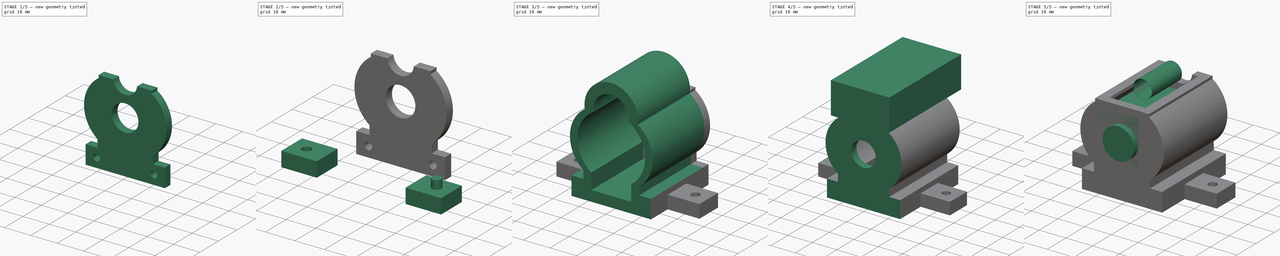
[diagram: build sequence overview — one tinted view per stage of 5, left to right]
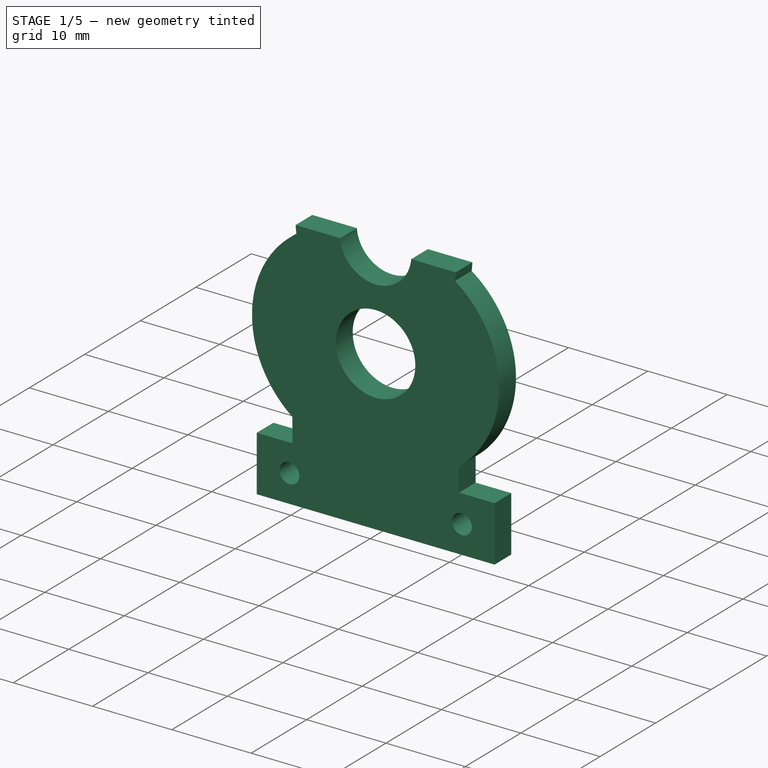
[diagram: stage 1 of 5 — iso view after this stage's code; geometry added in this stage tinted green]
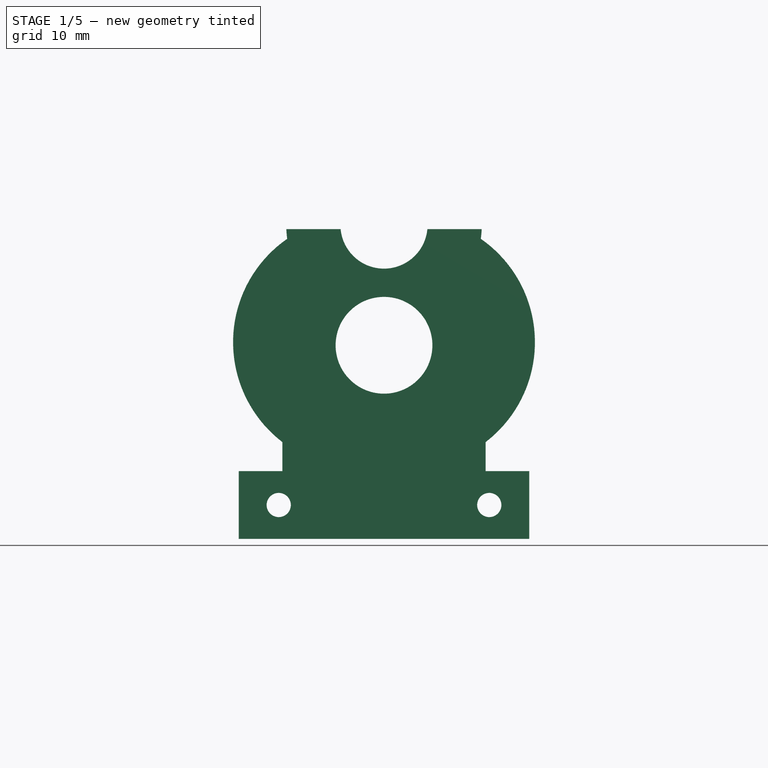
[diagram: stage 1 of 5 — front view after this stage's code; geometry added in this stage tinted green]
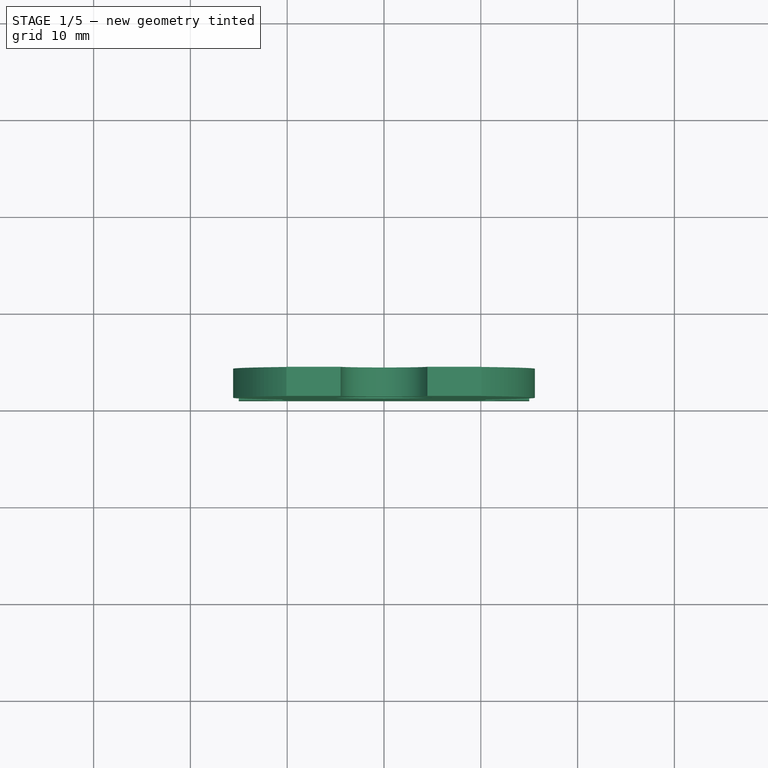
[diagram: stage 1 of 5 — top view after this stage's code; geometry added in this stage tinted green]
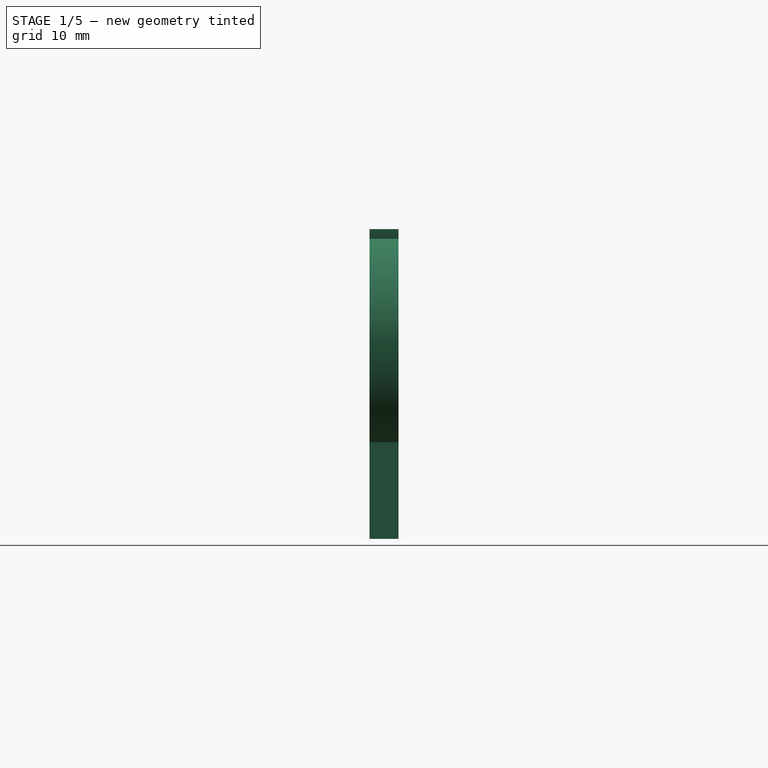
[diagram: stage 1 of 5 — right view after this stage's code; geometry added in this stage tinted green]
FCSTD DOCUMENT  (FreeCAD 1.0R39109 (Git))
Label: LightningArrestorHolder
License: All rights reserved
LicenseURL: https://en.wikipedia.org/wiki/All_rights_reserved
objects: Part::Cylinder×6, Part::Cut×6, Part::Box×6, Sketcher::SketchObject×4, Part::Extrusion×4, Part::Feature×3, Part::MultiFuse×3, App::Part×2, Part::FeaturePython×1
note: 37 computed .brp shape members not serialized (recipe doc carries the construction recipe); baked Part::Feature solids carry a one-line shape summary decoded from their .brp

FEATURE [Sketcher::SketchObject] Sketch003
  ArcFitTolerance = 0
  FullyConstrained = true
  MakeInternals = false
  Placement = pos=(0,0,0) rot=(1,0,0;1.5708rad)
  sketch-geometry (14):
    g0: ArcOfCircle CenterX=0 CenterY=12.4177 CenterZ=0 NormalX=0 NormalY=0 NormalZ=1 AngleXU=0 Radius=10.1 StartAngle=6.14235 EndAngle=9.56561
    g1: ArcOfCircle CenterX=-2.59139 CenterY=0.317652 CenterZ=0 NormalX=0 NormalY=0 NormalZ=1 AngleXU=0 Radius=13 StartAngle=2.17717 EndAngle=4.0584
    g2: ArcOfCircle CenterX=2.59139 CenterY=0.317652 CenterZ=0 NormalX=0 NormalY=0 NormalZ=1 AngleXU=0 Radius=13 StartAngle=5.36637 EndAngle=7.24761
    g3: LineSegment StartX=10.5 StartY=-10 StartZ=0 EndX=10.5 EndY=-13 EndZ=0
    g4: LineSegment StartX=10.5 StartY=-13 StartZ=0 EndX=15 EndY=-13 EndZ=0
    g5: LineSegment StartX=15 StartY=-13 StartZ=0 EndX=15 EndY=-20 EndZ=0
    g6: LineSegment StartX=-10.5 StartY=-10 StartZ=0 EndX=-10.5 EndY=-13 EndZ=0
    g7: LineSegment StartX=-10.5 StartY=-13 StartZ=0 EndX=-15 EndY=-13 EndZ=0
    g8: LineSegment StartX=-15 StartY=-13 StartZ=0 EndX=-15 EndY=-20 EndZ=0
    g9: LineSegment StartX=-15 StartY=-20 StartZ=0 EndX=15 EndY=-20 EndZ=0
    g10: Circle CenterX=0 CenterY=0 CenterZ=0 NormalX=0 NormalY=0 NormalZ=1 AngleXU=0 Radius=5
    g11: Circle CenterX=0 CenterY=12.4177 CenterZ=0 NormalX=0 NormalY=0 NormalZ=1 AngleXU=0 Radius=4.5
    g12: Circle CenterX=-10.8747 CenterY=-16.5 CenterZ=0 NormalX=0 NormalY=0 NormalZ=1 AngleXU=0 Radius=1.25
    g13: Circle CenterX=10.8747 CenterY=-16.5 CenterZ=0 NormalX=0 NormalY=0 NormalZ=1 AngleXU=0 Radius=1.25
  constraints (41):
    c: Coincident(g1,g0)
    c: Coincident(g2,g0)
    c: Coincident(g3,g2)
    c: Vertical(g3)
    c: Coincident(g4,g3)
    c: Horizontal(g4)
    c: Coincident(g5,g4)
    c: Vertical(g5)
    c: Coincident(g6,g1)
    c: Vertical(g6)
    c: Coincident(g7,g6)
    c: Horizontal(g7)
    c: Coincident(g8,g7)
    c: Vertical(g8)
    c: Coincident(g9,g8)
    c: Coincident(g9,g5)
    c: Symmetric(g8,g5,g-2)
    c: Distance(g8,g-1) = 20
    c: Distance(g8) = 7
    c: Distance(g5) = 7
    c: Distance(g9) = 30
    c: Distance(g0,g-1) = 11
    c: Distance(g0,g-2) = 10
    c: Distance(g0,g-1) = 11
    c: Distance(g0,g-2) = 10
    c: Distance(g6) = 3
    c: Distance(g3) = 3
    c: Diameter(g2) = 26
    c: Diameter(g1) = 26
    c: Diameter(g0) = 20.2
    c: Distance(g4) = 4.5
    c: Distance(g7) = 4.5
    c: Coincident(g-1,g10)
    c: Diameter(g10) = 10
    c: Coincident(g11,g0)
    c: Diameter(g11) = 9
    c: Distance(g12,g-1) = 16.5
    c: Diameter(g13) = 2.5
    c: Diameter(g12) = 2.5
    c: Symmetric(g12,g13,g-2)
    c: Distance(g13,g3) = 3.52
FEATURE [Part::Extrusion] Extrude003  label="Back_cover"
  Base = -> Sketch003
  Dir = (0,-1,2e-16)
  DirMode = 2
  FaceMakerClass = Part::FaceMakerBullseye
  FaceMakerMode = 3
  LengthFwd = 3
  LengthRev = 0
  Placement = pos=(0,31,0) rot=(0,0,1;0rad)
  Reversed = true
  Solid = true
  Symmetric = false
FEATURE [Part::Box] Box  label="Cube"
  AttacherType = Attacher::AttachEngine3D
  Height = 2
  Length = 3
  Placement = pos=(-1.5,29,19.5) rot=(0,0,1;0rad)
  Width = 2
FEATURE [Part::MultiFuse] Fusion001  label="bck"
  Shapes = -> [Box,Extrude003]
FEATURE [Part::Box] Box005  label="Cube005"
  AttacherType = Attacher::AttachEngine3D
  Height = 13
  Length = 24
  Placement = pos=(-12,-2,12) rot=(0,0,1;0rad)
  Width = 42
FEATURE [Part::Cut] Cut005  label="cover"
  Base = -> Fusion001
  Refine = true
  Tool = -> Box005
FEATURE [App::Part] Part001  label="Case"
  Group = -> [Cylinder002,Cylinder003,Cylinder004,Sketch001,Sketch002,Extrude001,Extrude002,Cylinder005,Cut003,Cut002,Fusion,Cut,Cut001,Fusion002,Box001,Box003,Box004,Box002,Cut004,Box,Sketch003,Extrude003,Fusion001,Box005,Cut005]
  Origin = -> Origin001
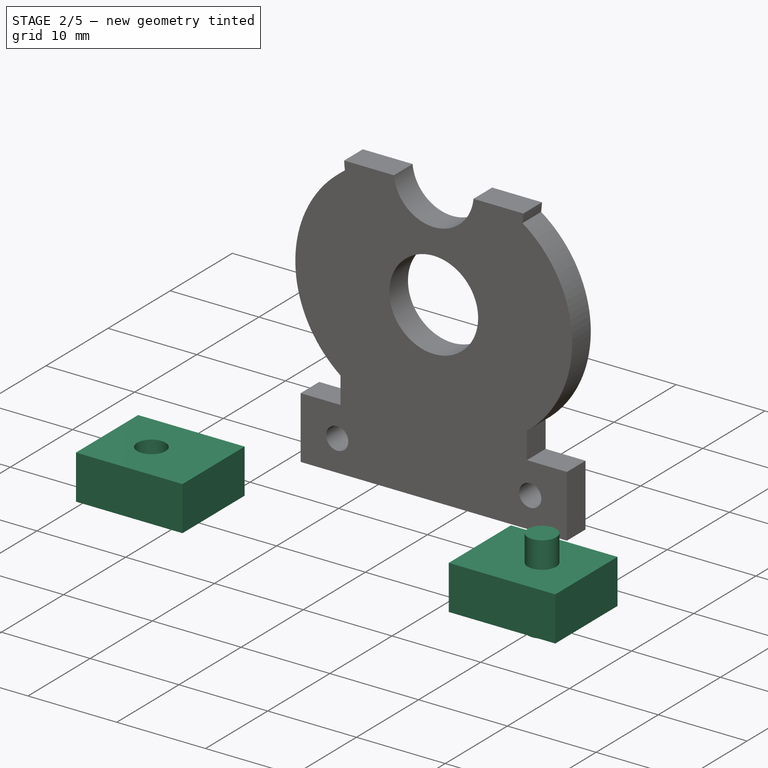
[diagram: stage 2 of 5 — iso view after this stage's code; geometry added in this stage tinted green]
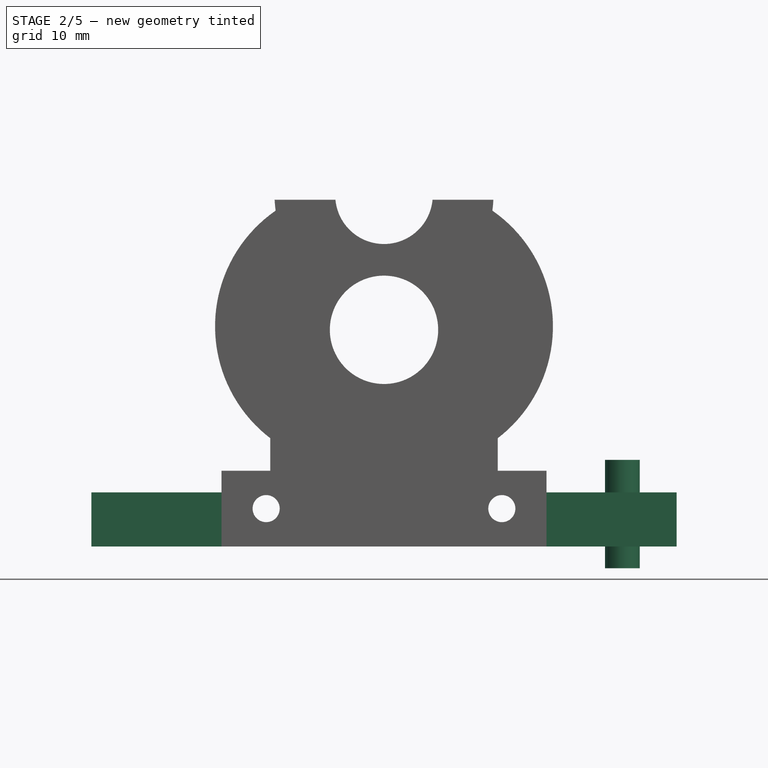
[diagram: stage 2 of 5 — front view after this stage's code; geometry added in this stage tinted green]
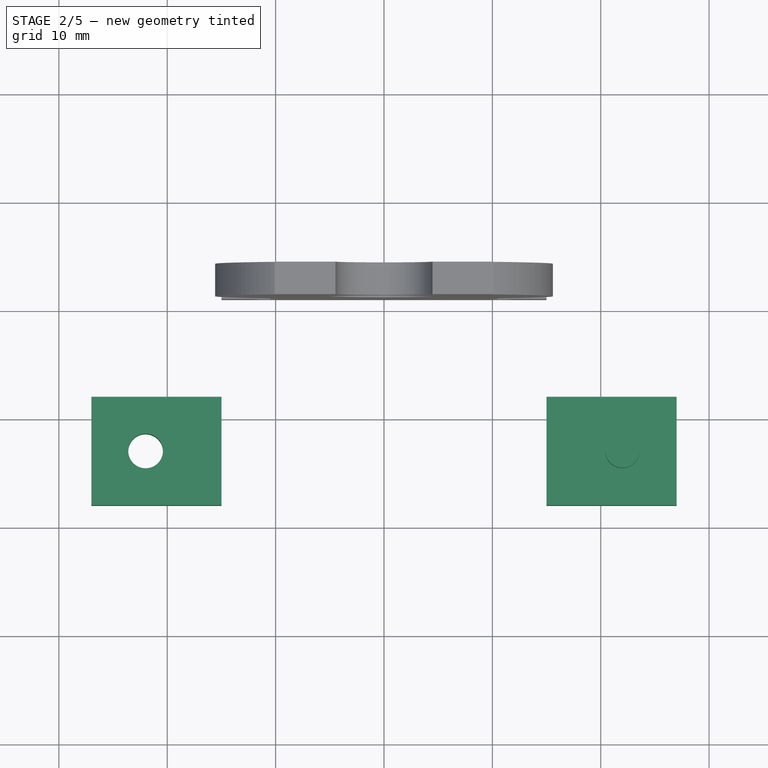
[diagram: stage 2 of 5 — top view after this stage's code; geometry added in this stage tinted green]
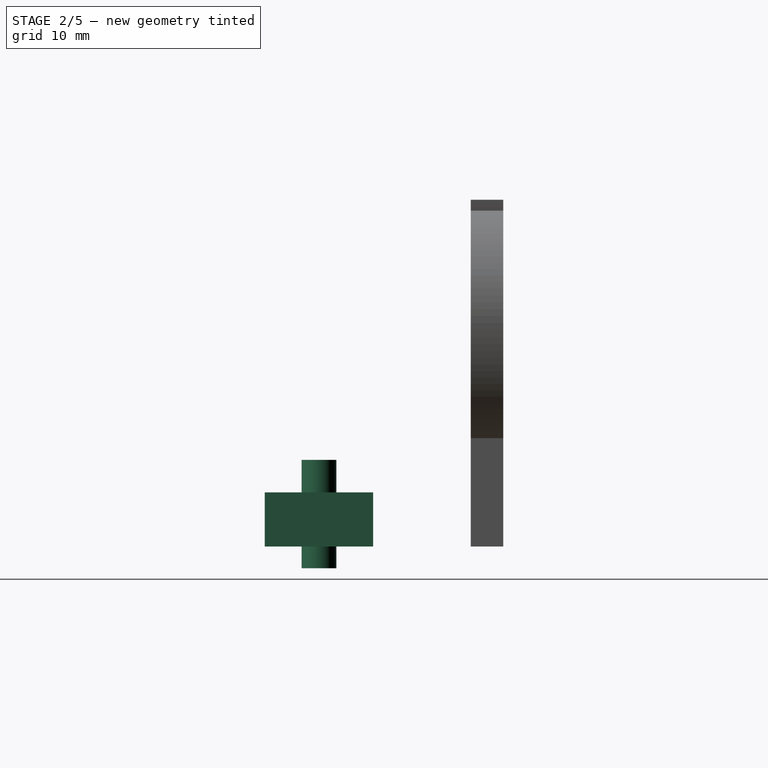
[diagram: stage 2 of 5 — right view after this stage's code; geometry added in this stage tinted green]
FEATURE [Part::Box] Box002  label="Cube002"
  AttacherType = Attacher::AttachEngine3D
  Height = 5
  Length = 12
  Placement = pos=(15,12,-20) rot=(0,0,1;0rad)
  Width = 10
FEATURE [Part::Cylinder] Cylinder004
  Angle = 360
  AttacherType = Attacher::AttachEngine3D
  FirstAngle = 0
  Height = 10
  Placement = pos=(22,17,-22) rot=(0,0,1;0rad)
  Radius = 1.6
  SecondAngle = 0
FEATURE [Part::Box] Box003  label="Cube003"
  AttacherType = Attacher::AttachEngine3D
  Height = 5
  Length = 12
  Placement = pos=(15,12,-20) rot=(0,0,1;0rad)
  Width = 10
FEATURE [Part::Cylinder] Cylinder005
  Angle = 360
  AttacherType = Attacher::AttachEngine3D
  FirstAngle = 0
  Height = 10
  Placement = pos=(22,17,-22) rot=(0,0,1;0rad)
  Radius = 1.6
  SecondAngle = 0
FEATURE [Part::Cut] Cut003
  Base = -> Box003
  Placement = pos=(0,34,0) rot=(0,0,1;3.14159rad)
  Refine = true
  Tool = -> Cylinder005
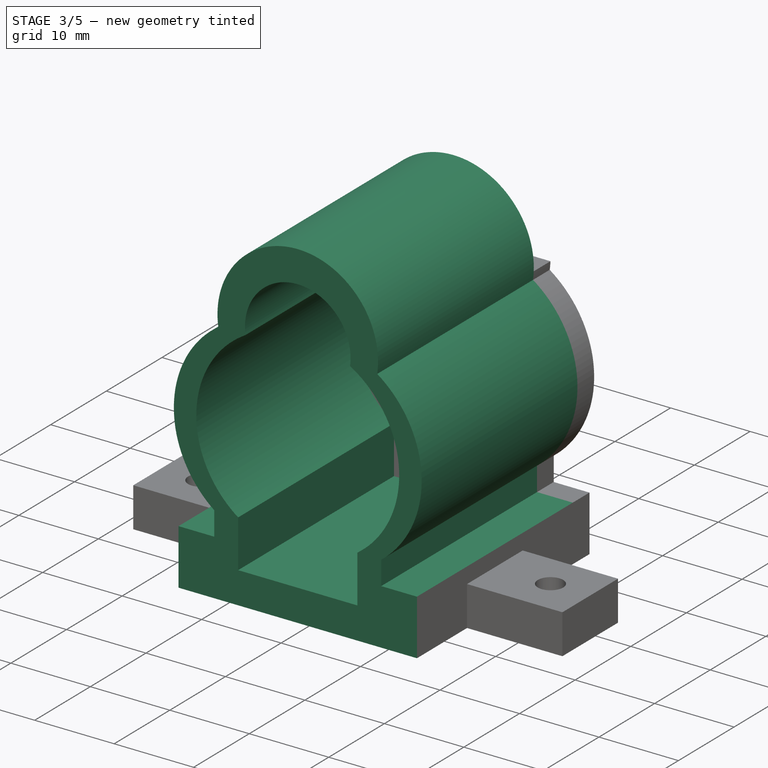
[diagram: stage 3 of 5 — iso view after this stage's code; geometry added in this stage tinted green]
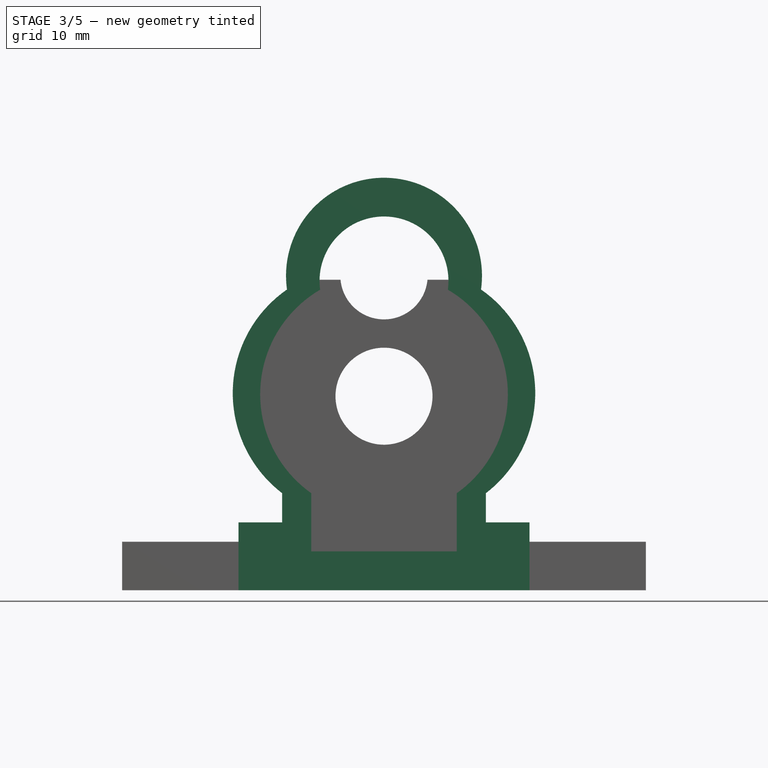
[diagram: stage 3 of 5 — front view after this stage's code; geometry added in this stage tinted green]
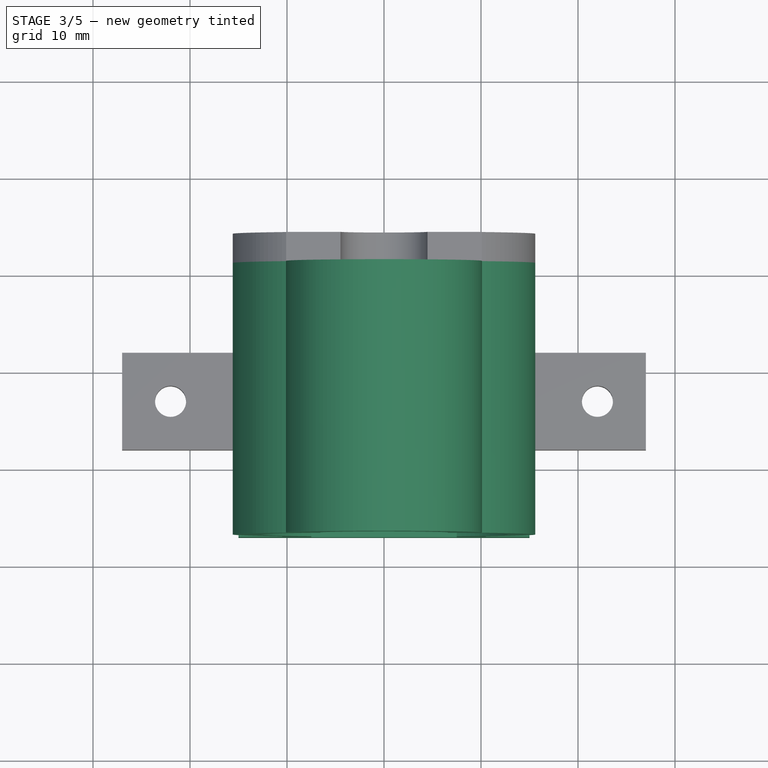
[diagram: stage 3 of 5 — top view after this stage's code; geometry added in this stage tinted green]
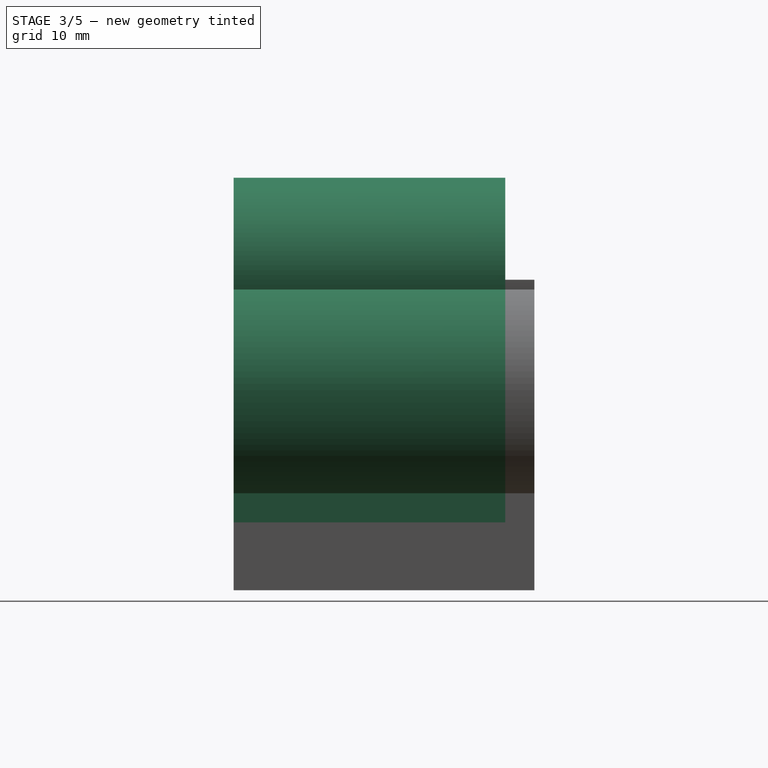
[diagram: stage 3 of 5 — right view after this stage's code; geometry added in this stage tinted green]
FEATURE [App::Part] Part  label="Lightning_Arrestor"
  Group = -> [Sketch,Extrude,Cylinder,Part__Feature,Part__Feature001,Cylinder001,Part__Feature002,Tube]
  Origin = -> Origin
  Placement = pos=(0,5.5,0) rot=(0,0,1;0rad)
FEATURE [Sketcher::SketchObject] Sketch001
  ArcFitTolerance = 0
  FullyConstrained = true
  MakeInternals = false
  Placement = pos=(0,0,0) rot=(1,0,0;1.5708rad)
  sketch-geometry (16):
    g0: LineSegment StartX=-7.5 StartY=-10 StartZ=0 EndX=-7.5 EndY=-16 EndZ=0
    g1: LineSegment StartX=-7.5 StartY=-16 StartZ=0 EndX=7.5 EndY=-16 EndZ=0
    g2: LineSegment StartX=7.5 StartY=-16 StartZ=0 EndX=7.5 EndY=-10 EndZ=0
    g3: ArcOfCircle CenterX=-2e-16 CenterY=11.88 CenterZ=0 NormalX=0 NormalY=0 NormalZ=1 AngleXU=0 Radius=6.64493 StartAngle=6.14733 EndAngle=9.56064
    g4: ArcOfCircle CenterX=0.265981 CenterY=0.194065 CenterZ=0 NormalX=0 NormalY=0 NormalZ=1 AngleXU=0 Radius=12.5 StartAngle=5.32955 EndAngle=7.32412
    g5: ArcOfCircle CenterX=-0.265981 CenterY=0.194065 CenterZ=0 NormalX=0 NormalY=0 NormalZ=1 AngleXU=0 Radius=12.5 StartAngle=2.10066 EndAngle=4.09523
    g6: ArcOfCircle CenterX=-1e-16 CenterY=12.4177 CenterZ=0 NormalX=0 NormalY=0 NormalZ=1 AngleXU=0 Radius=10.1 StartAngle=6.14235 EndAngle=9.56561
    g7: ArcOfCircle CenterX=-2.59139 CenterY=0.317652 CenterZ=0 NormalX=0 NormalY=0 NormalZ=1 AngleXU=0 Radius=13 StartAngle=2.17717 EndAngle=4.0584
    g8: ArcOfCircle CenterX=2.59139 CenterY=0.317652 CenterZ=0 NormalX=0 NormalY=0 NormalZ=1 AngleXU=0 Radius=13 StartAngle=5.36637 EndAngle=7.24761
    g9: LineSegment StartX=10.5 StartY=-10 StartZ=0 EndX=10.5 EndY=-13 EndZ=0
    g10: LineSegment StartX=10.5 StartY=-13 StartZ=0 EndX=15 EndY=-13 EndZ=0
    g11: LineSegment StartX=15 StartY=-13 StartZ=0 EndX=15 EndY=-20 EndZ=0
    g12: LineSegment StartX=-10.5 StartY=-10 StartZ=0 EndX=-10.5 EndY=-13 EndZ=0
    g13: LineSegment StartX=-10.5 StartY=-13 StartZ=0 EndX=-15 EndY=-13 EndZ=0
    g14: LineSegment StartX=-15 StartY=-13 StartZ=0 EndX=-15 EndY=-20 EndZ=0
    g15: LineSegment StartX=-15 StartY=-20 StartZ=0 EndX=15 EndY=-20 EndZ=0
  constraints (51):
    c: Vertical(g0)
    c: Coincident(g1,g0)
    c: Coincident(g2,g1)
    c: Vertical(g2)
    c: Coincident(g4,g3)
    c: Coincident(g4,g2)
    c: Coincident(g5,g3)
    c: Coincident(g5,g0)
    c: Distance(g0,g-1) = 16
    c: Distance(g0,g-2) = 7.5
    c: Symmetric(g0,g1,g-2)
    c: Distance(g0) = 6
    c: Distance(g2) = 6
    c: Diameter(g4) = 25
    c: Diameter(g5) = 25
    c: Symmetric(g3,g3,g-2)
    c: Distance(g3,g0) = 21
    c: Distance(g3,g-1) = 10.98
    c: Distance(g3,g-1) = 11.88
    c: Coincident(g7,g6)
    c: Coincident(g8,g6)
    c: Coincident(g9,g8)
    c: Vertical(g9)
    c: Coincident(g10,g9)
    c: Horizontal(g10)
    c: Coincident(g11,g10)
    c: Vertical(g11)
    c: Coincident(g12,g7)
    c: Vertical(g12)
    c: Coincident(g13,g12)
    c: Horizontal(g13)
    c: Coincident(g14,g13)
    c: Vertical(g14)
    c: Coincident(g15,g14)
    c: Coincident(g15,g11)
    c: Symmetric(g14,g11,g-2)
    c: Distance(g14,g-1) = 20
    c: Distance(g14) = 7
    c: Distance(g11) = 7
    c: Distance(g15) = 30
    c: Distance(g12,g0) = 3
    c: Distance(g9,g2) = 3
    c: Distance(g6,g-1) = 11
    c: Distance(g6,g-2) = 10
    c: Distance(g6,g-1) = 11
    c: Distance(g6,g-2) = 10
    c: Distance(g12) = 3
    c: Distance(g9) = 3
    c: Diameter(g8) = 26
    c: Diameter(g7) = 26
    c: Diameter(g6) = 20.2
FEATURE [Part::Extrusion] Extrude001  label="outer_case"
  Base = -> Sketch001
  Dir = (0,-1,2e-16)
  DirMode = 2
  FaceMakerClass = Part::FaceMakerBullseye
  FaceMakerMode = 3
  LengthFwd = 28
  LengthRev = 0
  Placement = pos=(0,3,0) rot=(0,0,1;0rad)
  Reversed = true
  Solid = true
  Symmetric = false
FEATURE [Part::Cylinder] Cylinder002
  Angle = 360
  AttacherType = Attacher::AttachEngine3D
  FirstAngle = 0
  Height = 10
  Placement = pos=(10.87,21,-16.5) rot=(1,0,0;4.71239rad)
  Radius = 1.25
  SecondAngle = 0
FEATURE [Part::Cylinder] Cylinder003
  Angle = 360
  AttacherType = Attacher::AttachEngine3D
  FirstAngle = 0
  Height = 10
  Placement = pos=(-10.87,21,-16.5) rot=(-1,0,0;1.5708rad)
  Radius = 1.25
  SecondAngle = 0
FEATURE [Part::MultiFuse] Fusion  label="m2_cyl"
  Shapes = -> [Cylinder002,Cylinder003]
FEATURE [Part::Box] Box001  label="Cube001"
  AttacherType = Attacher::AttachEngine3D
  Height = 2
  Length = 3
  Placement = pos=(-1.5,29,19.5) rot=(0,0,1;0rad)
  Width = 2
FEATURE [Part::Cut] Cut002
  Base = -> Box002
  Refine = true
  Tool = -> Cylinder004
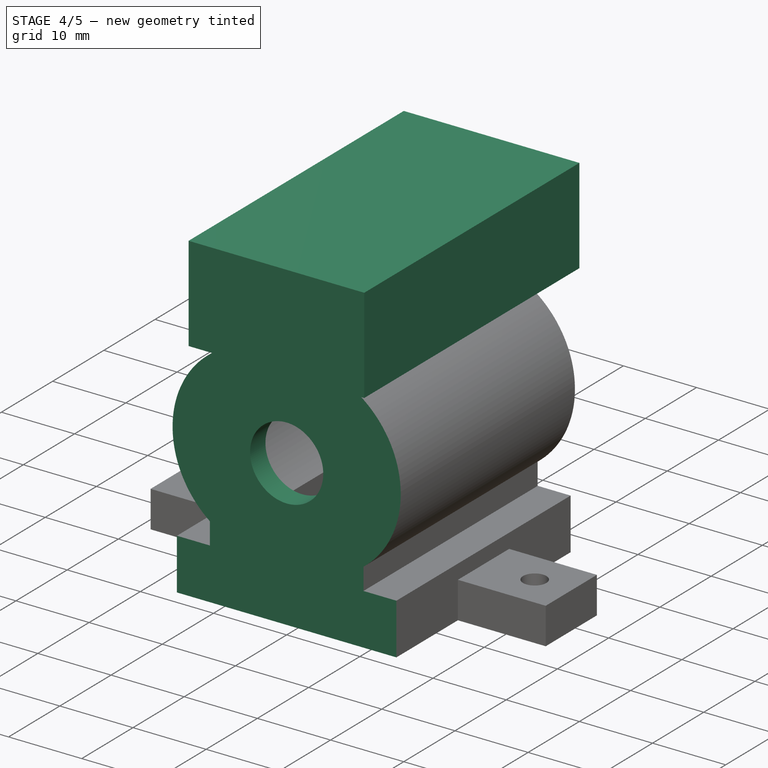
[diagram: stage 4 of 5 — iso view after this stage's code; geometry added in this stage tinted green]
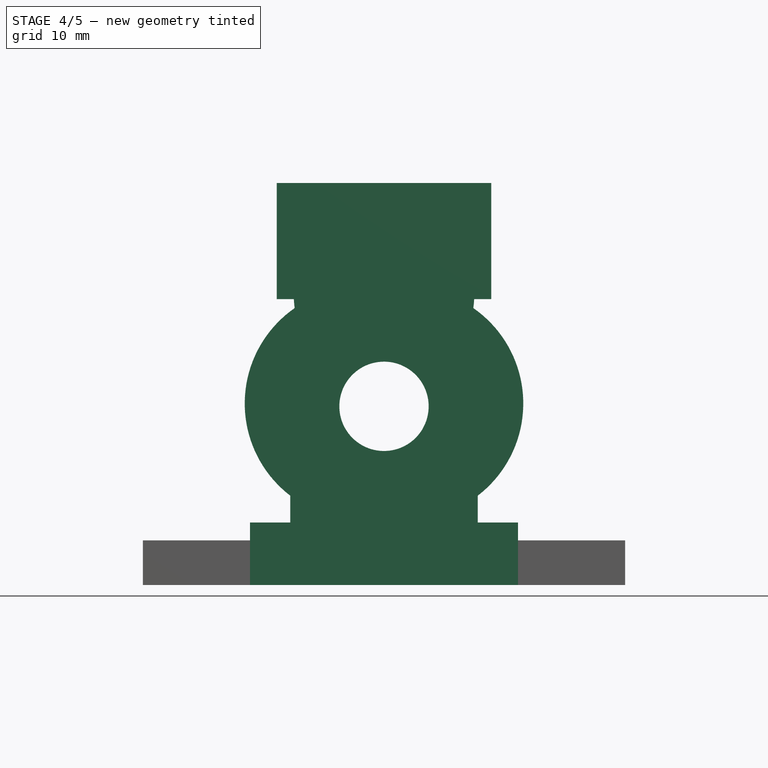
[diagram: stage 4 of 5 — front view after this stage's code; geometry added in this stage tinted green]
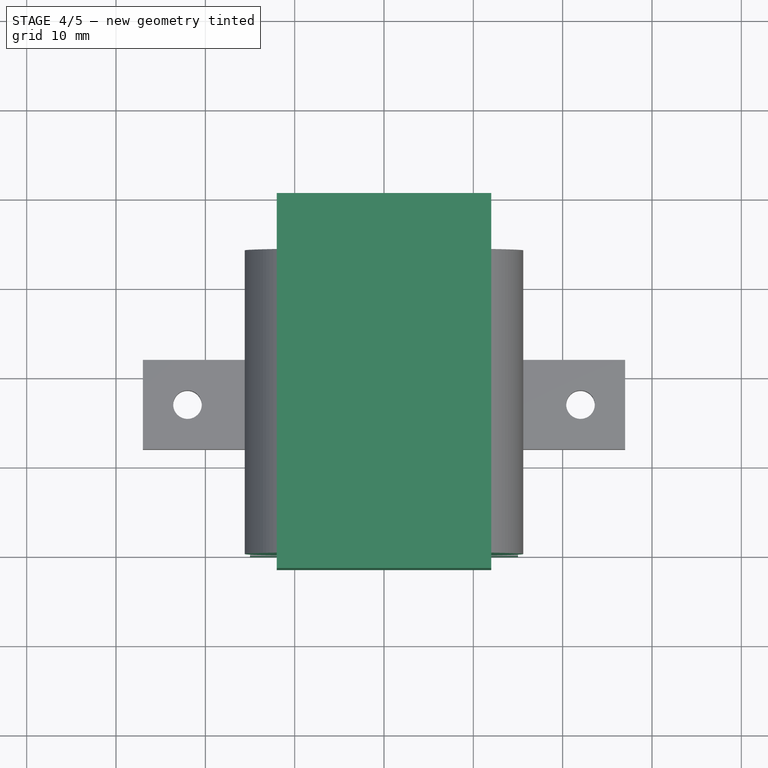
[diagram: stage 4 of 5 — top view after this stage's code; geometry added in this stage tinted green]
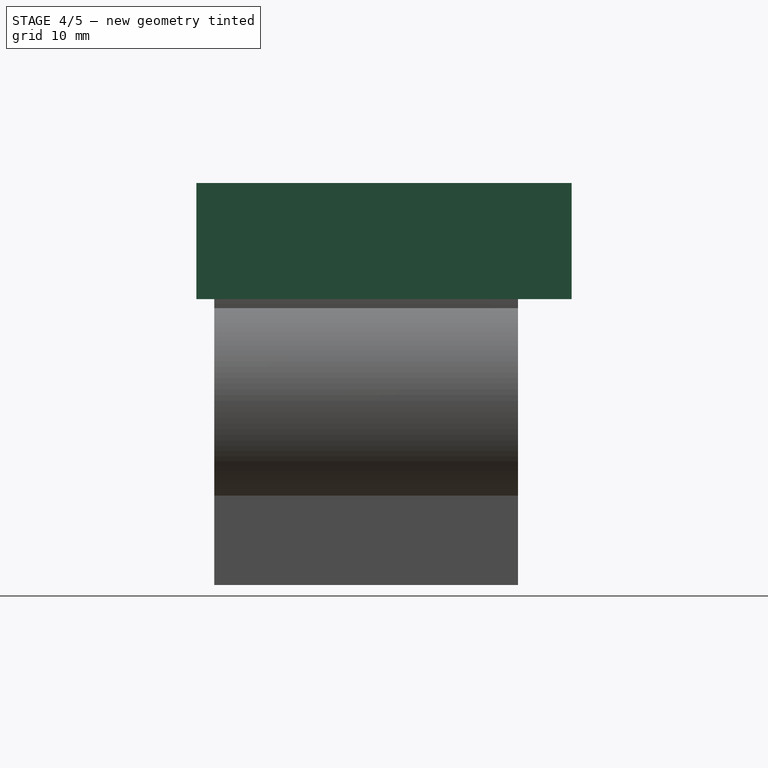
[diagram: stage 4 of 5 — right view after this stage's code; geometry added in this stage tinted green]
FEATURE [Sketcher::SketchObject] Sketch002
  ArcFitTolerance = 0
  FullyConstrained = true
  MakeInternals = false
  Placement = pos=(0,0,0) rot=(1,0,0;1.5708rad)
  sketch-geometry (11):
    g0: ArcOfCircle CenterX=-1e-16 CenterY=12.4177 CenterZ=0 NormalX=0 NormalY=0 NormalZ=1 AngleXU=0 Radius=10.1 StartAngle=6.14235 EndAngle=9.56561
    g1: ArcOfCircle CenterX=-2.59139 CenterY=0.317652 CenterZ=0 NormalX=0 NormalY=0 NormalZ=1 AngleXU=0 Radius=13 StartAngle=2.17717 EndAngle=4.0584
    g2: ArcOfCircle CenterX=2.59139 CenterY=0.317652 CenterZ=0 NormalX=0 NormalY=0 NormalZ=1 AngleXU=0 Radius=13 StartAngle=5.36637 EndAngle=7.24761
    g3: LineSegment StartX=10.5 StartY=-10 StartZ=0 EndX=10.5 EndY=-13 EndZ=0
    g4: LineSegment StartX=10.5 StartY=-13 StartZ=0 EndX=15 EndY=-13 EndZ=0
    g5: LineSegment StartX=15 StartY=-13 StartZ=0 EndX=15 EndY=-20 EndZ=0
    g6: LineSegment StartX=-10.5 StartY=-10 StartZ=0 EndX=-10.5 EndY=-13 EndZ=0
    g7: LineSegment StartX=-10.5 StartY=-13 StartZ=0 EndX=-15 EndY=-13 EndZ=0
    g8: LineSegment StartX=-15 StartY=-13 StartZ=0 EndX=-15 EndY=-20 EndZ=0
    g9: LineSegment StartX=-15 StartY=-20 StartZ=0 EndX=15 EndY=-20 EndZ=0
    g10: Circle CenterX=0 CenterY=0 CenterZ=0 NormalX=0 NormalY=0 NormalZ=1 AngleXU=0 Radius=5
  constraints (34):
    c: Coincident(g1,g0)
    c: Coincident(g2,g0)
    c: Coincident(g3,g2)
    c: Vertical(g3)
    c: Coincident(g4,g3)
    c: Horizontal(g4)
    c: Coincident(g5,g4)
    c: Vertical(g5)
    c: Coincident(g6,g1)
    c: Vertical(g6)
    c: Coincident(g7,g6)
    c: Horizontal(g7)
    c: Coincident(g8,g7)
    c: Vertical(g8)
    c: Coincident(g9,g8)
    c: Coincident(g9,g5)
    c: Symmetric(g8,g5,g-2)
    c: Distance(g8,g-1) = 20
    c: Distance(g8) = 7
    c: Distance(g5) = 7
    c: Distance(g9) = 30
    c: Distance(g0,g-1) = 11
    c: Distance(g0,g-2) = 10
    c: Distance(g0,g-1) = 11
    c: Distance(g0,g-2) = 10
    c: Distance(g6) = 3
    c: Distance(g3) = 3
    c: Diameter(g2) = 26
    c: Diameter(g1) = 26
    c: Diameter(g0) = 20.2
    c: Distance(g4) = 4.5
    c: Distance(g7) = 4.5
    c: Coincident(g-1,g10)
    c: Diameter(g10) = 10
FEATURE [Part::Extrusion] Extrude002  label="Front_cover"
  Base = -> Sketch002
  Dir = (0,-1,2e-16)
  DirMode = 2
  FaceMakerClass = Part::FaceMakerBullseye
  FaceMakerMode = 3
  LengthFwd = 3
  LengthRev = 0
  Reversed = true
  Solid = true
  Symmetric = false
FEATURE [Part::Cut] Cut  label="Outer_Case"
  Base = -> Extrude001
  Tool = -> Fusion
FEATURE [Part::Cut] Cut001  label="Outer"
  Base = -> Cut
  Tool = -> Box001
FEATURE [Part::Box] Box004  label="Cube004"
  AttacherType = Attacher::AttachEngine3D
  Height = 13
  Length = 24
  Placement = pos=(-12,-2,12) rot=(0,0,1;0rad)
  Width = 42
FEATURE [Part::MultiFuse] Fusion002
  Refine = true
  Shapes = -> [Cut001,Extrude002,Cut003,Cut002]
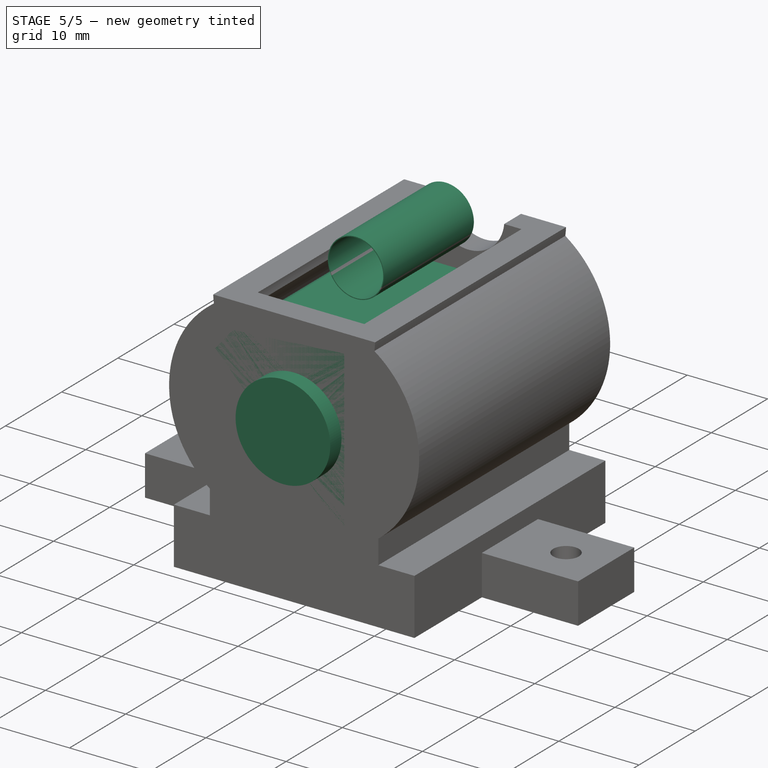
[diagram: stage 5 of 5 — iso view after this stage's code; geometry added in this stage tinted green]
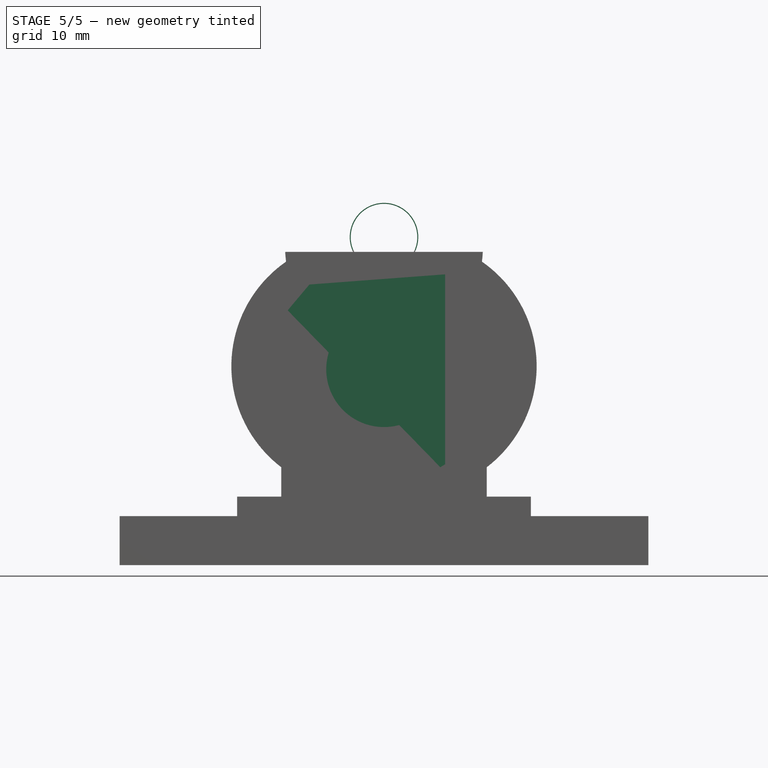
[diagram: stage 5 of 5 — front view after this stage's code; geometry added in this stage tinted green]
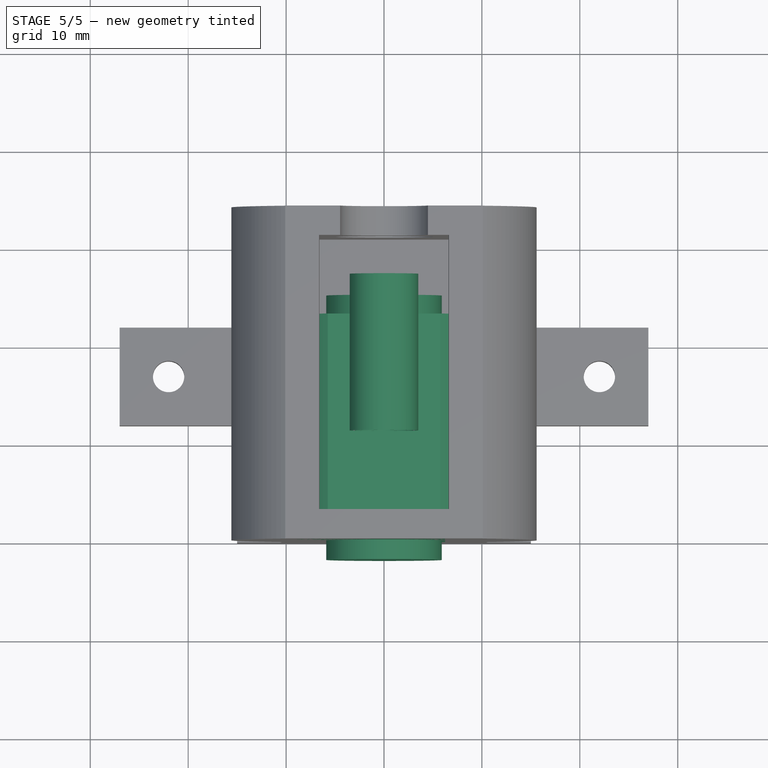
[diagram: stage 5 of 5 — top view after this stage's code; geometry added in this stage tinted green]
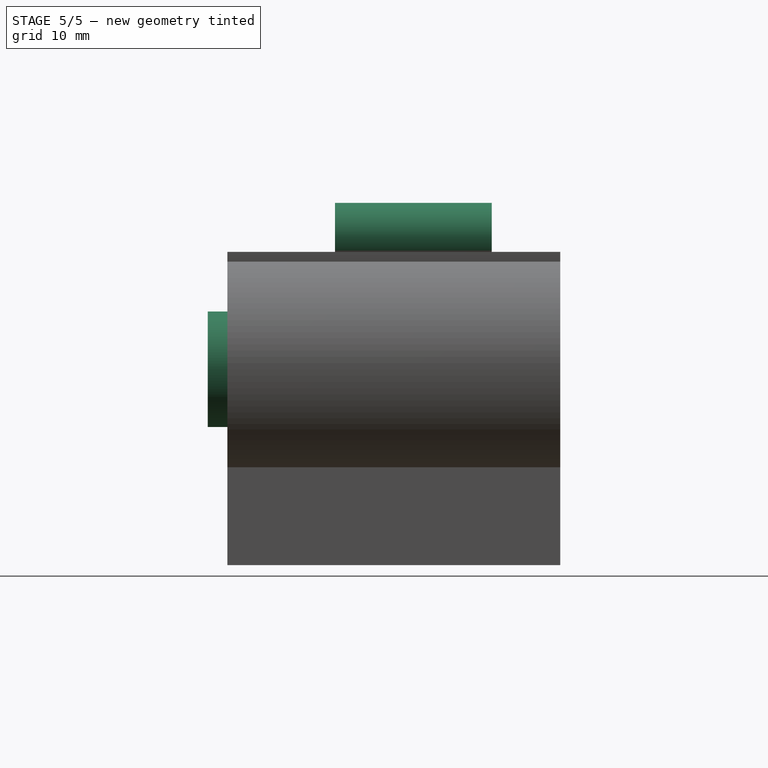
[diagram: stage 5 of 5 — right view after this stage's code; geometry added in this stage tinted green]
FEATURE [Sketcher::SketchObject] Sketch
  ArcFitTolerance = 0
  FullyConstrained = true
  MakeInternals = false
  Placement = pos=(0,0,0) rot=(1,0,0;1.5708rad)
  sketch-geometry (4):
    g0: LineSegment StartX=-5.75 StartY=-10 StartZ=0 EndX=5.75 EndY=-10 EndZ=0
    g1: LineSegment StartX=-5.75 StartY=10 StartZ=0 EndX=5.75 EndY=10 EndZ=0
    g2: ArcOfCircle CenterX=0 CenterY=-1e-16 CenterZ=0 NormalX=0 NormalY=0 NormalZ=1 AngleXU=0 Radius=11.5353 StartAngle=2.09263 EndAngle=4.19055
    g3: ArcOfCircle CenterX=0 CenterY=-1.2e-15 CenterZ=0 NormalX=0 NormalY=0 NormalZ=1 AngleXU=0 Radius=11.5353 StartAngle=5.23422 EndAngle=7.33215
  constraints (12):
    c: Symmetric(g1,g1,g-2)
    c: Symmetric(g0,g0,g-2)
    c: Distance(g1) = 11.5
    c: Distance(g0) = 11.5
    c: Distance(g1,g0) = 20
    c: Distance(g1,g-1) = 10
    c: Coincident(g2,g1)
    c: Coincident(g2,g0)
    c: Coincident(g3,g1)
    c: Coincident(g3,g0)
    c: PointOnObject(g2,g-2)
    c: PointOnObject(g3,g-2)
FEATURE [Part::Extrusion] Extrude
  Base = -> Sketch
  Dir = (0,-1,2e-16)
  DirMode = 2
  FaceMakerClass = Part::FaceMakerBullseye
  FaceMakerMode = 3
  LengthFwd = 23
  LengthRev = 0
  Reversed = true
  Solid = true
  Symmetric = false
FEATURE [Part::Cylinder] Cylinder
  Angle = 360
  AttacherType = Attacher::AttachEngine3D
  FirstAngle = 0
  Height = 27
  Placement = pos=(0,-2,0) rot=(-1,0,0;1.5708rad)
  Radius = 5.9
  SecondAngle = 0
FEATURE [Part::Feature] Part__Feature  label="SMA_f"
  Placement = pos=(0,33.5,0) rot=(1,0,0;4.71239rad)
  shape: bbox 7.333 x 19.05 x 7.333 mm, 216 faces (baked)
FEATURE [Part::Feature] Part__Feature001  label="SMA_m"
  Placement = pos=(0,-9,-2.2e-15) rot=(1,0,0;1.5708rad)
  shape: bbox 8.901 x 11.09 x 8.901 mm, 66 faces (baked)
FEATURE [Part::Cylinder] Cylinder001
  Angle = 360
  AttacherType = Attacher::AttachEngine3D
  FirstAngle = 0
  Height = 5
  Placement = pos=(0,13,-15) rot=(0,0,1;0rad)
  Radius = 6.5
  SecondAngle = 0
FEATURE [Part::Feature] Part__Feature002  label="M3.5"
  Placement = pos=(0,7,9) rot=(0,0,1;0rad)
  shape: bbox 7.514 x 7.514 x 8.144 mm, 85 faces (baked)
FEATURE [Part::FeaturePython] Tube  # WARN: FeaturePython — macro-defined, semantics opaque (R4)
  AttacherType = Attacher::AttachEngine3D
  Height = 16
  InnerRadius = 3.4
  OuterRadius = 3.5
  Placement = pos=(0,27,13.5) rot=(1,0,0;1.5708rad)
FEATURE [Part::Cut] Cut004  label="OuterBox"
  Base = -> Fusion002
  Refine = true
  Tool = -> Box004
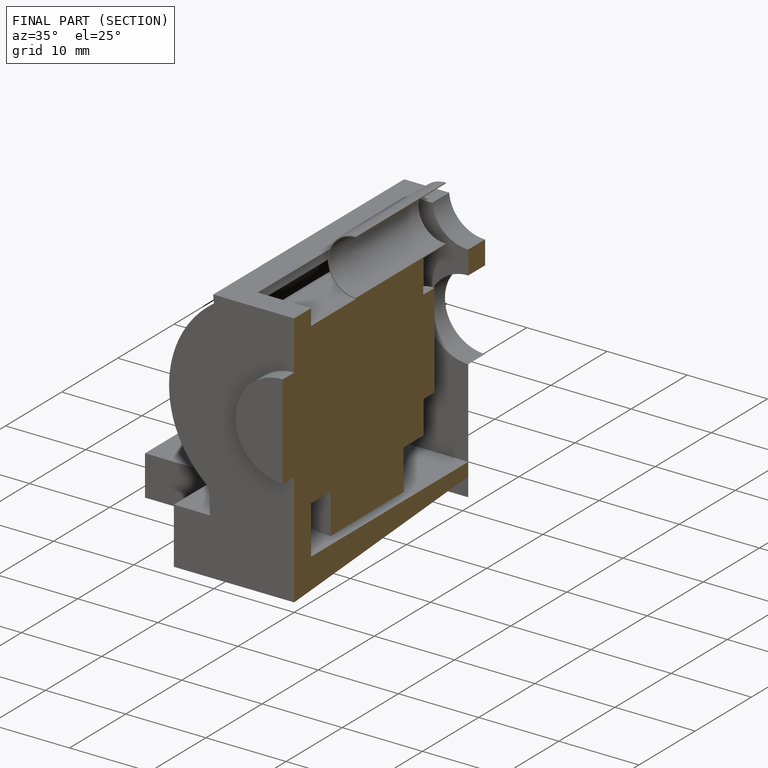
[diagram: finished part — half-section view (interior)]
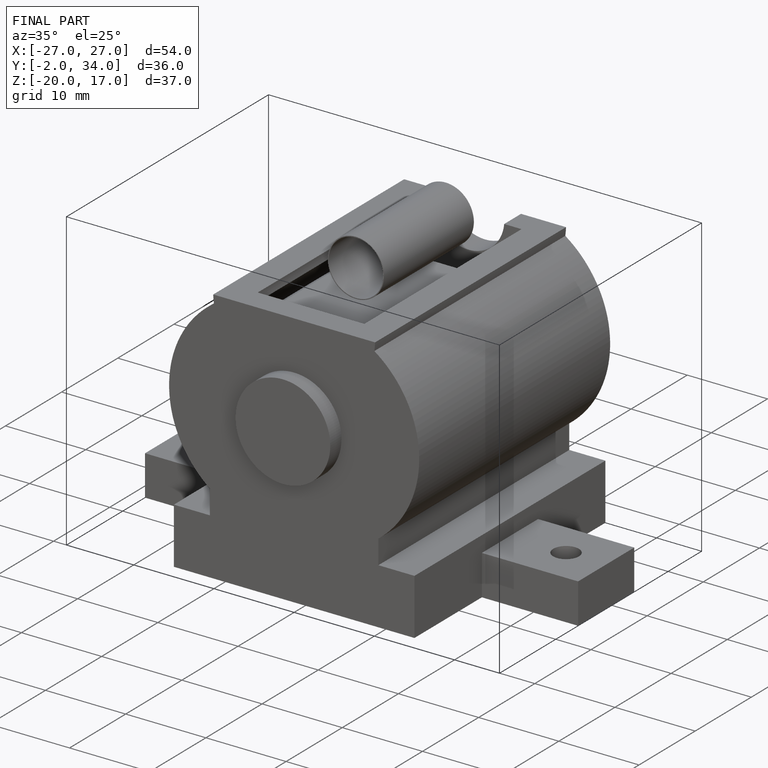
[diagram: finished part — iso view with bounding-box wireframe]
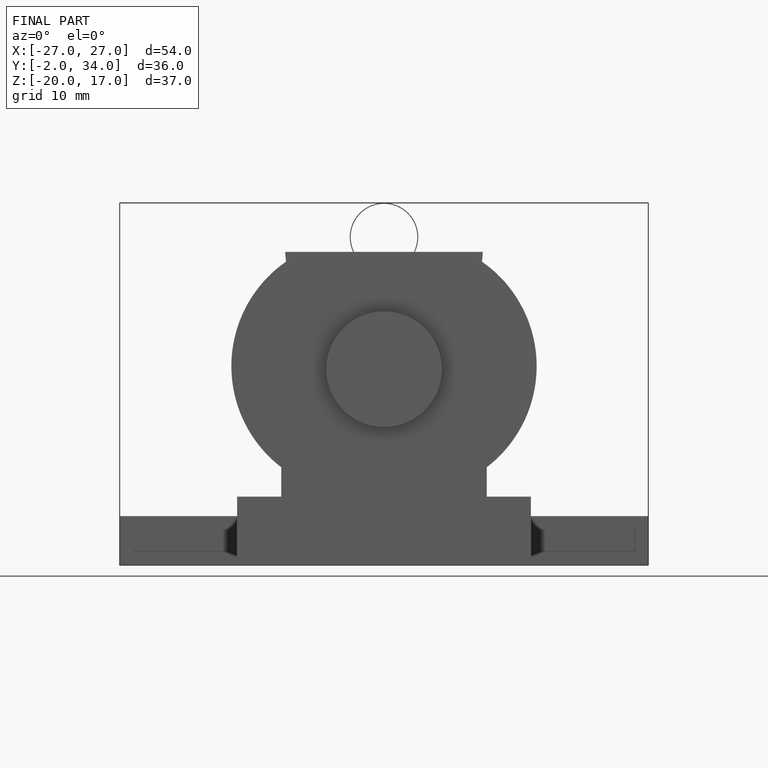
[diagram: finished part — front view with bounding-box wireframe]
